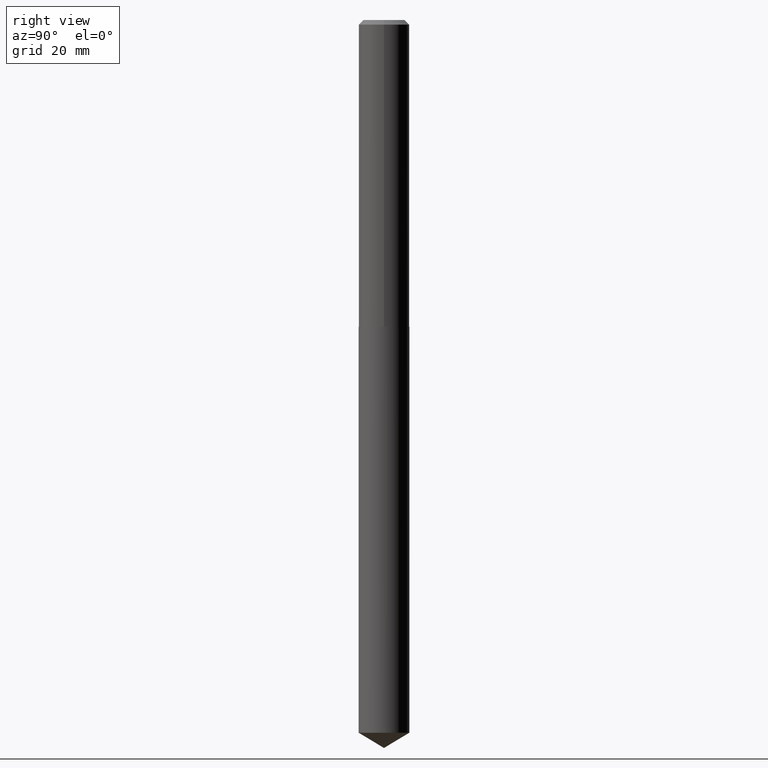
[diagram: clean part render]
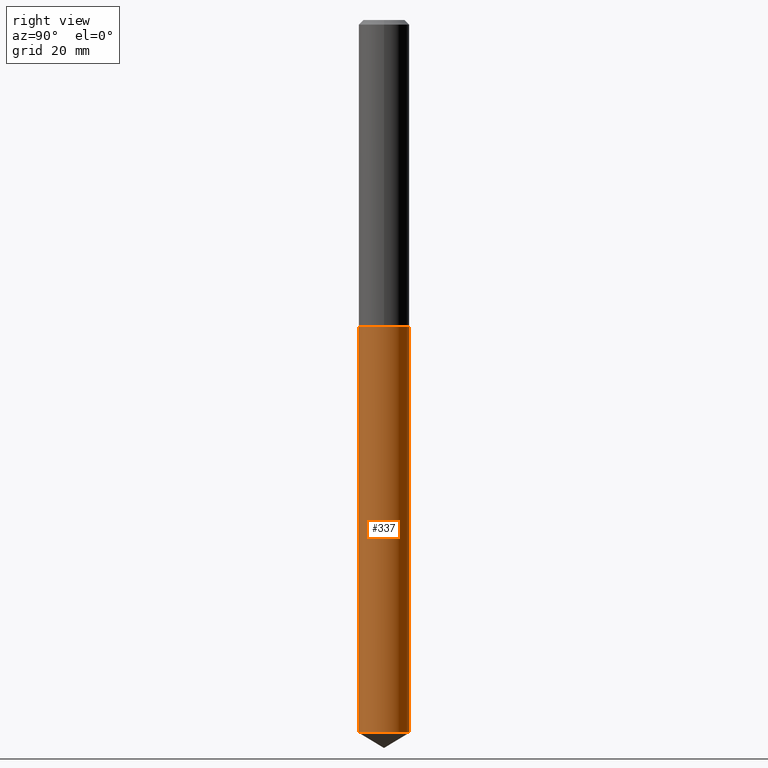
[diagram: same view with one face highlighted and labeled with its STEP entity id]
A machine part, right view. The second image highlights one B-rep face of the part: STEP entity #337.
In plain terms, the highlighted cylindrical surface (edge-blend (fillet) strip) has radius 4.3498 mm, axis along (-0, 0, 1).
Its self-contained STEP definition (entity closure, byte-faithful):
#15 = CIRCLE ( 'NONE', #289, 0.1712500000000000133 ) ;
#32 = CARTESIAN_POINT ( 'NONE',  ( 1.216804434989222150E-15, 0.1712499999999927691, -2.073800000000000310 ) ) ;
#43 = CARTESIAN_POINT ( 'NONE',  ( 1.178334310351648346E-28, -1.682323422404567893E-14, -4.818402618991531661 ) ) ;
#58 = CARTESIAN_POINT ( 'NONE',  ( 1.216804434989290189E-15, 0.1712499999999927691, -2.073800000000000310 ) ) ;
#71 = DIRECTION ( 'NONE',  ( -6.982962677686265922E-15, -1.000000000000000000, 3.190479408658993096E-15 ) ) ;
#82 = CARTESIAN_POINT ( 'NONE',  ( 1.216804434989289598E-15, 0.1712499999999831934, -4.818402618991532549 ) ) ;
#100 = ORIENTED_EDGE ( 'NONE', *, *, #155, .T. ) ;
#106 = ORIENTED_EDGE ( 'NONE', *, *, #286, .T. ) ;
#108 = VERTEX_POINT ( 'NONE', #82 ) ;
#124 = CARTESIAN_POINT ( 'NONE',  ( -1.195832358553722450E-15, -0.1712500000000072575, -2.073799999999998978 ) ) ;
#127 = VERTEX_POINT ( 'NONE', #58 ) ;
#152 = CIRCLE ( 'NONE', #231, 0.1712500000000000133 ) ;
#153 = DIRECTION ( 'NONE',  ( -2.445501526088303412E-29, 3.491434482079509131E-15, 1.000000000000000000 ) ) ;
#155 = EDGE_CURVE ( 'NONE', #108, #127, #386, .T. ) ;
#164 = DIRECTION ( 'NONE',  ( -6.982962677686265922E-15, -1.000000000000000000, 3.190479408658993096E-15 ) ) ;
#170 = VECTOR ( 'NONE', #207, 39.37007874015748143 ) ;
#188 = CYLINDRICAL_SURFACE ( 'NONE', #320, 0.1712500000000000133 ) ;
#192 = DIRECTION ( 'NONE',  ( -2.445501526088303412E-29, 3.491434482079509131E-15, 1.000000000000000000 ) ) ;
#204 = EDGE_CURVE ( 'NONE', #253, #255, #296, .T. ) ;
#206 = CARTESIAN_POINT ( 'NONE',  ( -1.195832358553722450E-15, -0.1712500000000072575, -2.073799999999998978 ) ) ;
#207 = DIRECTION ( 'NONE',  ( -2.445501526088303693E-29, 3.491434482079509131E-15, 1.000000000000000000 ) ) ;
#211 = FACE_OUTER_BOUND ( 'NONE', #340, .T. ) ;
#216 = CARTESIAN_POINT ( 'NONE',  ( 5.071413210266735491E-29, -7.240634000492913769E-15, -2.073799999999999422 ) ) ;
#231 = AXIS2_PLACEMENT_3D ( 'NONE', #43, #326, #164 ) ;
#234 = VECTOR ( 'NONE', #353, 39.37007874015748143 ) ;
#253 = VERTEX_POINT ( 'NONE', #301 ) ;
#255 = VERTEX_POINT ( 'NONE', #124 ) ;
#263 = ORIENTED_EDGE ( 'NONE', *, *, #332, .F. ) ;
#271 = ORIENTED_EDGE ( 'NONE', *, *, #204, .F. ) ;
#286 = EDGE_CURVE ( 'NONE', #253, #108, #152, .T. ) ;
#289 = AXIS2_PLACEMENT_3D ( 'NONE', #330, #153, #71 ) ;
#296 = LINE ( 'NONE', #206, #170 ) ;
#301 = CARTESIAN_POINT ( 'NONE',  ( -1.195832358553655397E-15, -0.1712500000000168887, -4.818402618991531661 ) ) ;
#320 = AXIS2_PLACEMENT_3D ( 'NONE', #216, #192, #358 ) ;
#326 = DIRECTION ( 'NONE',  ( -2.445501526088303412E-29, 3.491434482079509131E-15, 1.000000000000000000 ) ) ;
#330 = CARTESIAN_POINT ( 'NONE',  ( 5.071413210266735491E-29, -7.240634000492913769E-15, -2.073799999999999422 ) ) ;
#332 = EDGE_CURVE ( 'NONE', #255, #127, #15, .T. ) ;
#337 = ADVANCED_FACE ( 'NONE', ( #211 ), #188, .T. ) ;
#340 = EDGE_LOOP ( 'NONE', ( #106, #100, #263, #271 ) ) ;
#353 = DIRECTION ( 'NONE',  ( -2.445501526088303693E-29, 3.491434482079509131E-15, 1.000000000000000000 ) ) ;
#358 = DIRECTION ( 'NONE',  ( -6.982962677686265922E-15, -1.000000000000000000, 3.190479408658993096E-15 ) ) ;
#386 = LINE ( 'NONE', #32, #234 ) ;